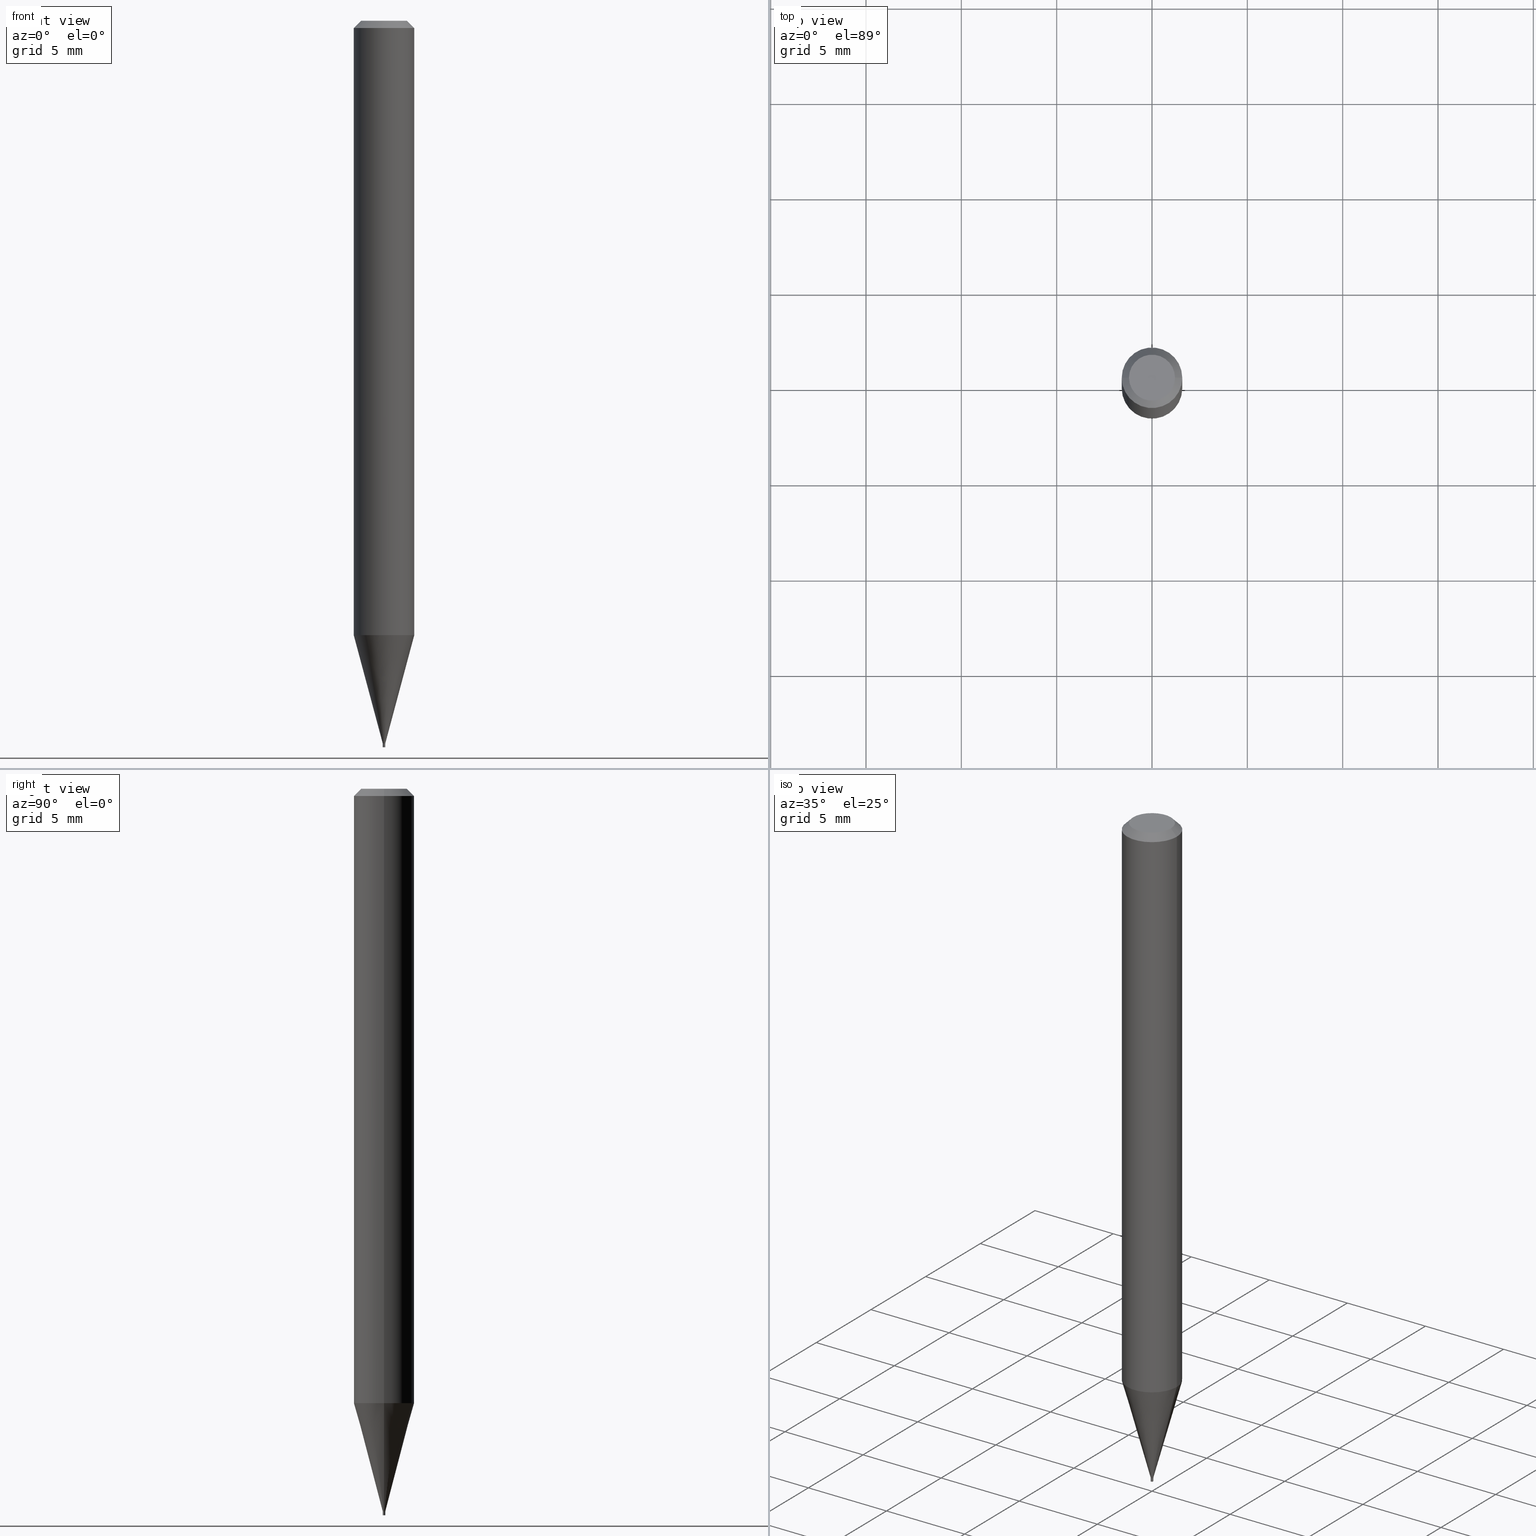
[diagram: canonical four-view strip — front | top / right | iso, engineering-drawing reading convention]
A machine part, canonical four-view strip (front | top / right | iso — engineering-drawing reading convention). The complete STEP part file that produces these views, byte-faithful:
ISO-10303-21;
HEADER;
FILE_DESCRIPTION (( 'STEP AP203' ),
    '1' );
FILE_NAME ('04040.STEP',
    '2024-03-14T16:55:02',
    ( '' ),
    ( '' ),
    'SwSTEP 2.0',
    'SolidWorks 2023',
    '' );
FILE_SCHEMA (( 'CONFIG_CONTROL_DESIGN' ));
ENDSEC;

DATA;
#1 = CARTESIAN_POINT ( 'NONE',  ( 0.002499999999999998751, -5.228493304917609870E-15, -1.492499999999999938 ) ) ;
#2 = FACE_OUTER_BOUND ( 'NONE', #423, .T. ) ;
#3 = COORDINATED_UNIVERSAL_TIME_OFFSET ( 5, 0, .BEHIND. ) ;
#4 = AXIS2_PLACEMENT_3D ( 'NONE', #320, #243, #323 ) ;
#5 = EDGE_LOOP ( 'NONE', ( #277, #367 ) ) ;
#6 = EDGE_CURVE ( 'NONE', #270, #449, #289, .T. ) ;
#7 = ORIENTED_EDGE ( 'NONE', *, *, #414, .T. ) ;
#8 = MECHANICAL_CONTEXT ( 'NONE', #120, 'mechanical' ) ;
#9 = CIRCLE ( 'NONE', #59, 0.001999999999999997440 ) ;
#10 = DIMENSIONAL_EXPONENTS ( 1.000000000000000000, 0.000000000000000000, 0.000000000000000000, 0.000000000000000000, 0.000000000000000000, 0.000000000000000000, 0.000000000000000000 ) ;
#11 = ORIENTED_EDGE ( 'NONE', *, *, #178, .F. ) ;
#12 = CARTESIAN_POINT ( 'NONE',  ( 0.002499999999999647903, -5.226747564248186789E-15, -1.491999999999999993 ) ) ;
#13 = CARTESIAN_POINT ( 'NONE',  ( -0.002500000000000199545, -5.193272329829391131E-15, -1.492499999999999938 ) ) ;
#14 = DIRECTION ( 'NONE',  ( 2.438088387897960049E-29, -3.491481338843145188E-15, -1.000000000000000000 ) ) ;
#15 = CONICAL_SURFACE ( 'NONE', #249, 0.002500000000000199545, 0.2617993877991505736 ) ;
#16 = EDGE_LOOP ( 'NONE', ( #216, #386, #341, #170 ) ) ;
#17 = EDGE_CURVE ( 'NONE', #189, #383, #214, .T. ) ;
#18 = CARTESIAN_POINT ( 'NONE',  ( 0.000000000000000000, 0.000000000000000000, 0.000000000000000000 ) ) ;
#19 = FACE_OUTER_BOUND ( 'NONE', #71, .T. ) ;
#20 = ORIENTED_EDGE ( 'NONE', *, *, #453, .F. ) ;
#21 = CYLINDRICAL_SURFACE ( 'NONE', #268, 0.002499999999999998751 ) ;
#22 = ORIENTED_EDGE ( 'NONE', *, *, #291, .F. ) ;
#23 = DIRECTION ( 'NONE',  ( -0.7071067811865330288, 2.468850131082105205E-15, -0.7071067811865620056 ) ) ;
#24 = DIRECTION ( 'NONE',  ( 1.000000000000000000, -6.982962677686342441E-15, 0.000000000000000000 ) ) ;
#25 = EDGE_CURVE ( 'NONE', #383, #189, #335, .T. ) ;
#26 = CIRCLE ( 'NONE', #352, 0.001999999999999997440 ) ;
#27 = DIRECTION ( 'NONE',  ( 1.000000000000000000, -6.982962677686358218E-15, 0.000000000000000000 ) ) ;
#28 = ORIENTED_EDGE ( 'NONE', *, *, #418, .F. ) ;
#29 = FACE_OUTER_BOUND ( 'NONE', #128, .T. ) ;
#30 = APPROVAL ( #255, 'UNSPECIFIED' ) ;
#31 = VECTOR ( 'NONE', #217, 39.37007874015748143 ) ;
#32 = DIRECTION ( 'NONE',  ( -1.000000000000000000, 6.982962677686266711E-15, 0.000000000000000000 ) ) ;
#33 =( LENGTH_UNIT ( ) NAMED_UNIT ( * ) SI_UNIT ( $, .METRE. ) );
#34 = SECURITY_CLASSIFICATION_LEVEL ( 'unclassified' ) ;
#35 = ORIENTED_EDGE ( 'NONE', *, *, #292, .T. ) ;
#36 = ORIENTED_EDGE ( 'NONE', *, *, #292, .F. ) ;
#37 = EDGE_CURVE ( 'NONE', #95, #449, #45, .T. ) ;
#38 = VECTOR ( 'NONE', #57, 39.37007874015748143 ) ;
#39 = APPROVAL_STATUS ( 'not_yet_approved' ) ;
#40 = LOCAL_TIME ( 12, 55, 2.000000000000000000, #441 ) ;
#41 = EDGE_CURVE ( 'NONE', #466, #365, #239, .T. ) ;
#42 = APPROVAL_STATUS ( 'not_yet_approved' ) ;
#43 = DIRECTION ( 'NONE',  ( 1.000000000000000000, -6.982962677686345597E-15, 0.000000000000000000 ) ) ;
#44 = PERSON_AND_ORGANIZATION ( #63, #459 ) ;
#45 = CIRCLE ( 'NONE', #312, 0.002499999999999647903 ) ;
#46 = DIRECTION ( 'NONE',  ( -2.445468806185136597E-29, 3.491481338843145583E-15, 1.000000000000000000 ) ) ;
#47 = LINE ( 'NONE', #138, #428 ) ;
#48 = EDGE_CURVE ( 'NONE', #183, #305, #241, .T. ) ;
#49 = ORIENTED_EDGE ( 'NONE', *, *, #332, .T. ) ;
#50 = LINE ( 'NONE', #303, #458 ) ;
#51 = DIRECTION ( 'NONE',  ( -2.445468806185136597E-29, 3.491481338843145583E-15, 1.000000000000000000 ) ) ;
#52 = CARTESIAN_POINT ( 'NONE',  ( 3.649862193231316236E-29, -5.211035898223394834E-15, -1.492499999999999938 ) ) ;
#53 = CARTESIAN_POINT ( 'NONE',  ( 3.102265363250856610E-29, -4.429212753208927148E-15, -1.268576951545869136 ) ) ;
#54 = DIRECTION ( 'NONE',  ( -2.438088387897960049E-29, 3.491481338843145188E-15, 1.000000000000000000 ) ) ;
#55 = DIRECTION ( 'NONE',  ( -2.445468806185136877E-29, 3.491481338843145188E-15, 1.000000000000000000 ) ) ;
#56 = DIRECTION ( 'NONE',  ( -2.445468806185136597E-29, 3.491481338843145583E-15, 1.000000000000000000 ) ) ;
#57 = DIRECTION ( 'NONE',  ( -2.445468806185136877E-29, 3.491481338843145188E-15, 1.000000000000000000 ) ) ;
#58 = AXIS2_PLACEMENT_3D ( 'NONE', #53, #46, #265 ) ;
#59 = AXIS2_PLACEMENT_3D ( 'NONE', #93, #234, #447 ) ;
#60 = AXIS2_PLACEMENT_3D ( 'NONE', #169, #56, #24 ) ;
#61 = LOCAL_TIME ( 12, 55, 2.000000000000000000, #153 ) ;
#62 = CARTESIAN_POINT ( 'NONE',  ( -0.002499999999999647903, -5.191526589159973571E-15, -1.491999999999999993 ) ) ;
#63 = PERSON ( 'UNSPECIFIED', 'UNSPECIFIED', 'UNSPECIFIED', ('UNSPECIFIED'), ('UNSPECIFIED'), ('UNSPECIFIED') ) ;
#64 = FACE_OUTER_BOUND ( 'NONE', #430, .T. ) ;
#65 = CC_DESIGN_DATE_AND_TIME_ASSIGNMENT ( #77, #157, ( #156 ) ) ;
#66 = CARTESIAN_POINT ( 'NONE',  ( -0.001999999999999997440, -5.194175816334083195E-15, -1.492500000000000160 ) ) ;
#67 = ORIENTED_EDGE ( 'NONE', *, *, #17, .F. ) ;
#68 = CIRCLE ( 'NONE', #185, 0.002499999999999998751 ) ;
#69 = CC_DESIGN_SECURITY_CLASSIFICATION ( #370, ( #295 ) ) ;
#70 = CARTESIAN_POINT ( 'NONE',  ( -0.002499999999999998751, 1.776356839400249577E-17, -1.229733772563725911E-31 ) ) ;
#71 = EDGE_LOOP ( 'NONE', ( #7, #154, #437, #204 ) ) ;
#72 = PLANE ( 'NONE',  #215 ) ;
#73 = DIRECTION ( 'NONE',  ( 1.000000000000000000, -6.982962677686266711E-15, 4.876176775795935793E-29 ) ) ;
#74 = ORIENTED_EDGE ( 'NONE', *, *, #344, .T. ) ;
#75 = ADVANCED_FACE ( 'NONE', ( #2 ), #150, .T. ) ;
#76 = EDGE_LOOP ( 'NONE', ( #84, #49, #197, #339 ) ) ;
#77 = DATE_AND_TIME ( #444, #343 ) ;
#78 = DIRECTION ( 'NONE',  ( 1.000000000000000000, -6.982962677686267499E-15, 4.852736867747366768E-29 ) ) ;
#79 = EDGE_CURVE ( 'NONE', #305, #300, #351, .T. ) ;
#80 = ADVANCED_FACE ( 'NONE', ( #200 ), #227, .F. ) ;
#81 = AXIS2_PLACEMENT_3D ( 'NONE', #226, #163, #134 ) ;
#82 = APPROVAL_PERSON_ORGANIZATION ( #374, #357, #407 ) ;
#83 = APPLICATION_CONTEXT ( 'configuration controlled 3d designs of mechanical parts and assemblies' ) ;
#84 = ORIENTED_EDGE ( 'NONE', *, *, #79, .T. ) ;
#85 = PERSON_AND_ORGANIZATION ( #63, #459 ) ;
#86 = CARTESIAN_POINT ( 'NONE',  ( 3.649862193231316236E-29, -5.211035898223394834E-15, -1.492499999999999938 ) ) ;
#87 = PERSON_AND_ORGANIZATION_ROLE ( 'design_supplier' ) ;
#88 = ORIENTED_EDGE ( 'NONE', *, *, #291, .T. ) ;
#89 = APPLICATION_PROTOCOL_DEFINITION ( 'international standard', 'config_control_design', 1994, #83 ) ;
#90 = AXIS2_PLACEMENT_3D ( 'NONE', #283, #316, #317 ) ;
#91 = DIRECTION ( 'NONE',  ( 1.000000000000000000, -6.982962677686266711E-15, 0.000000000000000000 ) ) ;
#92 = ORIENTED_EDGE ( 'NONE', *, *, #319, .T. ) ;
#93 = CARTESIAN_POINT ( 'NONE',  ( 3.649862193231316797E-29, -5.211035898223395623E-15, -1.492500000000000160 ) ) ;
#94 = MANIFOLD_SOLID_BREP ( 'Body-Move/Copy2[1]', #232 ) ;
#96 = ADVANCED_FACE ( 'NONE', ( #457 ), #382, .T. ) ;
#95 = VERTEX_POINT ( 'NONE', #12 ) ;
#97 = DIRECTION ( 'NONE',  ( -2.445468806185136597E-29, 3.491481338843145583E-15, 1.000000000000000000 ) ) ;
#98 = EDGE_LOOP ( 'NONE', ( #106, #465, #137, #174 ) ) ;
#99 = PRODUCT ( '04040', '04040', '', ( #8 ) ) ;
#100 = LINE ( 'NONE', #236, #376 ) ;
#101 = CARTESIAN_POINT ( 'NONE',  ( 3.649862193231316797E-29, -5.211035898223395623E-15, -1.492500000000000160 ) ) ;
#102 = DIRECTION ( 'NONE',  ( 0.7071067811865330288, -7.319954787623207136E-15, -0.7071067811865620056 ) ) ;
#103 = MANIFOLD_SOLID_BREP ( 'Body-Move/Copy2[2]', #257 ) ;
#104 = DIRECTION ( 'NONE',  ( 1.000000000000000000, -6.982962677686342441E-15, 0.000000000000000000 ) ) ;
#105 = VECTOR ( 'NONE', #144, 39.37007874015748143 ) ;
#106 = ORIENTED_EDGE ( 'NONE', *, *, #377, .T. ) ;
#107 = LENGTH_MEASURE_WITH_UNIT ( LENGTH_MEASURE( 0.02539999999999999897 ), #33 );
#108 = ADVANCED_FACE ( 'NONE', ( #19 ), #148, .T. ) ;
#109 = DIRECTION ( 'NONE',  ( 0.2588190451025218497, 1.565188264969618221E-15, 0.9659258262890679791 ) ) ;
#110 = DIRECTION ( 'NONE',  ( 1.000000000000000000, -6.982962677686142071E-15, 0.000000000000000000 ) ) ;
#111 = PLANE ( 'NONE',  #225 ) ;
#112 =( NAMED_UNIT ( * ) PLANE_ANGLE_UNIT ( ) SI_UNIT ( $, .RADIAN. ) );
#113 = VECTOR ( 'NONE', #109, 39.37007874015748143 ) ;
#114 = AXIS2_PLACEMENT_3D ( 'NONE', #18, #307, #136 ) ;
#115 = CC_DESIGN_APPROVAL ( #284, ( #295 ) ) ;
#116 = DIRECTION ( 'NONE',  ( 1.000000000000000000, -6.982962677686142071E-15, 0.000000000000000000 ) ) ;
#117 = ORIENTED_EDGE ( 'NONE', *, *, #254, .T. ) ;
#118 = DATE_AND_TIME ( #126, #40 ) ;
#119 = ADVANCED_FACE ( 'NONE', ( #355 ), #361, .T. ) ;
#120 = APPLICATION_CONTEXT ( 'configuration controlled 3d designs of mechanical parts and assemblies' ) ;
#121 = DATE_AND_TIME ( #403, #260 ) ;
#122 = CARTESIAN_POINT ( 'NONE',  ( -0.002499999999999923724, 1.776356839400196267E-17, -1.229733772563688908E-31 ) ) ;
#123 = CONICAL_SURFACE ( 'NONE', #436, 0.06250000000000000000, 0.7853981633974278509 ) ;
#124 = CC_DESIGN_APPROVAL ( #30, ( #370 ) ) ;
#125 = CC_DESIGN_DATE_AND_TIME_ASSIGNMENT ( #192, #224, ( #370 ) ) ;
#126 = CALENDAR_DATE ( 2024, 14, 3 ) ;
#127 = CARTESIAN_POINT ( 'NONE',  ( -1.505681066337554235E-44, 2.149713515899588158E-30, 6.157024217726067260E-16 ) ) ;
#128 = EDGE_LOOP ( 'NONE', ( #36, #328, #133, #321 ) ) ;
#129 = DIRECTION ( 'NONE',  ( 1.000000000000000000, 0.000000000000000000, 0.000000000000000000 ) ) ;
#130 = DIRECTION ( 'NONE',  ( -2.445468806185136597E-29, 3.491481338843145583E-15, 1.000000000000000000 ) ) ;
#131 = VECTOR ( 'NONE', #329, 39.37007874015748143 ) ;
#132 = CARTESIAN_POINT ( 'NONE',  ( 0.000000000000000000, 0.000000000000000000, 0.000000000000000000 ) ) ;
#133 = ORIENTED_EDGE ( 'NONE', *, *, #258, .T. ) ;
#134 = DIRECTION ( 'NONE',  ( 1.000000000000000000, -6.982962677686358218E-15, 0.000000000000000000 ) ) ;
#135 = ADVANCED_FACE ( 'NONE', ( #393 ), #111, .F. ) ;
#136 = DIRECTION ( 'NONE',  ( 1.000000000000000000, -6.982962677686266711E-15, 4.876176775795936914E-29 ) ) ;
#137 = ORIENTED_EDGE ( 'NONE', *, *, #41, .F. ) ;
#138 = CARTESIAN_POINT ( 'NONE',  ( -0.001999999999999997440, -5.196825043508193607E-15, -1.492500000000000160 ) ) ;
#139 = ADVANCED_FACE ( 'NONE', ( #311 ), #15, .T. ) ;
#140 = VECTOR ( 'NONE', #340, 39.37007874015748143 ) ;
#141 = ORIENTED_EDGE ( 'NONE', *, *, #41, .T. ) ;
#142 = FACE_OUTER_BOUND ( 'NONE', #410, .T. ) ;
#143 = CARTESIAN_POINT ( 'NONE',  ( 3.649862193231316236E-29, -5.211035898223394834E-15, -1.492499999999999938 ) ) ;
#144 = DIRECTION ( 'NONE',  ( -2.445468806185136877E-29, 3.491481338843145188E-15, 1.000000000000000000 ) ) ;
#145 = CC_DESIGN_PERSON_AND_ORGANIZATION_ASSIGNMENT ( #337, #261, ( #156 ) ) ;
#146 = CYLINDRICAL_SURFACE ( 'NONE', #399, 0.06250000000000000000 ) ;
#147 = ADVANCED_FACE ( 'NONE', ( #439 ), #72, .F. ) ;
#148 = CONICAL_SURFACE ( 'NONE', #60, 0.001999999999999997440, 0.7853981633969264742 ) ;
#149 = EDGE_CURVE ( 'NONE', #305, #331, #191, .T. ) ;
#150 = CONICAL_SURFACE ( 'NONE', #208, 0.06250000000000000000, 0.7853981633974278509 ) ;
#151 = AXIS2_PLACEMENT_3D ( 'NONE', #245, #462, #27 ) ;
#152 =( GEOMETRIC_REPRESENTATION_CONTEXT ( 3 ) GLOBAL_UNCERTAINTY_ASSIGNED_CONTEXT ( ( #177 ) ) GLOBAL_UNIT_ASSIGNED_CONTEXT ( ( #210, #112, #364 ) ) REPRESENTATION_CONTEXT ( 'NONE', 'WORKASPACE' ) );
#153 = COORDINATED_UNIVERSAL_TIME_OFFSET ( 5, 0, .BEHIND. ) ;
#154 = ORIENTED_EDGE ( 'NONE', *, *, #308, .T. ) ;
#155 = PERSON_AND_ORGANIZATION ( #63, #459 ) ;
#156 = PRODUCT_DEFINITION ( 'UNKNOWN', '', #295, #464 ) ;
#157 = DATE_TIME_ROLE ( 'creation_date' ) ;
#158 = ORIENTED_EDGE ( 'NONE', *, *, #418, .T. ) ;
#159 = CIRCLE ( 'NONE', #165, 0.06250000000000000000 ) ;
#160 = PERSON_AND_ORGANIZATION ( #63, #459 ) ;
#161 = APPROVAL_PERSON_ORGANIZATION ( #85, #284, #223 ) ;
#162 = DIRECTION ( 'NONE',  ( 0.000000000000000000, 0.000000000000000000, 1.000000000000000000 ) ) ;
#163 = DIRECTION ( 'NONE',  ( -2.445468806185136597E-29, 3.491481338843145583E-15, 1.000000000000000000 ) ) ;
#164 = EDGE_LOOP ( 'NONE', ( #141, #158 ) ) ;
#165 = AXIS2_PLACEMENT_3D ( 'NONE', #297, #334, #350 ) ;
#166 = DIRECTION ( 'NONE',  ( -2.445468806185136597E-29, 3.491481338843145583E-15, 1.000000000000000000 ) ) ;
#167 = ORIENTED_EDGE ( 'NONE', *, *, #178, .T. ) ;
#168 = CARTESIAN_POINT ( 'NONE',  ( 3.668203209277704895E-29, -5.237222008264718177E-15, -1.500000000000000222 ) ) ;
#169 = CARTESIAN_POINT ( 'NONE',  ( 3.649862193231316797E-29, -5.211035898223395623E-15, -1.492500000000000160 ) ) ;
#170 = ORIENTED_EDGE ( 'NONE', *, *, #258, .F. ) ;
#171 = CARTESIAN_POINT ( 'NONE',  ( -0.06250000000000001388, -3.985123543358863743E-15, -1.268576951545869136 ) ) ;
#172 = FACE_OUTER_BOUND ( 'NONE', #98, .T. ) ;
#173 = AXIS2_PLACEMENT_3D ( 'NONE', #345, #166, #416 ) ;
#174 = ORIENTED_EDGE ( 'NONE', *, *, #319, .F. ) ;
#175 = DIRECTION ( 'NONE',  ( -2.445468806185136597E-29, 3.491481338843145583E-15, 1.000000000000000000 ) ) ;
#176 = CARTESIAN_POINT ( 'NONE',  ( 0.000000000000000000, 0.000000000000000000, 0.000000000000000000 ) ) ;
#177 = UNCERTAINTY_MEASURE_WITH_UNIT (LENGTH_MEASURE( 1.000000000000000082E-05 ), #210, 'distance_accuracy_value', 'NONE');
#178 = EDGE_CURVE ( 'NONE', #300, #305, #259, .T. ) ;
#179 = ORIENTED_EDGE ( 'NONE', *, *, #326, .F. ) ;
#180 = CIRCLE ( 'NONE', #442, 0.002499999999999998751 ) ;
#181 = ORIENTED_EDGE ( 'NONE', *, *, #453, .T. ) ;
#182 = CYLINDRICAL_SURFACE ( 'NONE', #4, 0.002499999999999923724 ) ;
#183 = VERTEX_POINT ( 'NONE', #266 ) ;
#184 = FACE_OUTER_BOUND ( 'NONE', #373, .T. ) ;
#185 = AXIS2_PLACEMENT_3D ( 'NONE', #168, #347, #417 ) ;
#186 = CARTESIAN_POINT ( 'NONE',  ( 0.06250000000000000000, -4.364351673553916694E-16, 3.047610484872459871E-30 ) ) ;
#187 = APPROVAL_PERSON_ORGANIZATION ( #155, #30, #411 ) ;
#188 = PERSON_AND_ORGANIZATION ( #63, #459 ) ;
#189 = VERTEX_POINT ( 'NONE', #413 ) ;
#190 = EDGE_CURVE ( 'NONE', #331, #285, #159, .T. ) ;
#191 = LINE ( 'NONE', #186, #131 ) ;
#192 = DATE_AND_TIME ( #264, #61 ) ;
#193 = EDGE_LOOP ( 'NONE', ( #218, #167, #419, #22 ) ) ;
#194 = AXIS2_PLACEMENT_3D ( 'NONE', #388, #51, #346 ) ;
#195 = EDGE_LOOP ( 'NONE', ( #318, #402 ) ) ;
#196 = LINE ( 'NONE', #389, #38 ) ;
#197 = ORIENTED_EDGE ( 'NONE', *, *, #190, .F. ) ;
#198 = AXIS2_PLACEMENT_3D ( 'NONE', #52, #310, #456 ) ;
#199 = CYLINDRICAL_SURFACE ( 'NONE', #114, 0.002499999999999998751 ) ;
#200 = FACE_OUTER_BOUND ( 'NONE', #195, .T. ) ;
#201 = ORIENTED_EDGE ( 'NONE', *, *, #48, .F. ) ;
#202 = CC_DESIGN_PERSON_AND_ORGANIZATION_ASSIGNMENT ( #160, #87, ( #295 ) ) ;
#203 = CARTESIAN_POINT ( 'NONE',  ( 0.002499999999999923724, -1.745740669421513430E-17, 1.219044193948946770E-31 ) ) ;
#204 = ORIENTED_EDGE ( 'NONE', *, *, #426, .F. ) ;
#205 = LINE ( 'NONE', #278, #221 ) ;
#206 = DIRECTION ( 'NONE',  ( -2.445468806185136597E-29, 3.491481338843145583E-15, 1.000000000000000000 ) ) ;
#207 = LINE ( 'NONE', #13, #140 ) ;
#208 = AXIS2_PLACEMENT_3D ( 'NONE', #394, #432, #229 ) ;
#209 = EDGE_CURVE ( 'NONE', #211, #235, #68, .T. ) ;
#210 =( CONVERSION_BASED_UNIT ( 'INCH', #107 ) LENGTH_UNIT ( ) NAMED_UNIT ( #10 ) );
#211 = VERTEX_POINT ( 'NONE', #378 ) ;
#212 = ORIENTED_EDGE ( 'NONE', *, *, #230, .F. ) ;
#213 = CARTESIAN_POINT ( 'NONE',  ( -0.04749999999999999362, 3.578768372314221353E-16, 6.157024217726043594E-16 ) ) ;
#214 = CIRCLE ( 'NONE', #275, 0.04749999999999999362 ) ;
#215 = AXIS2_PLACEMENT_3D ( 'NONE', #252, #438, #368 ) ;
#216 = ORIENTED_EDGE ( 'NONE', *, *, #308, .F. ) ;
#217 = DIRECTION ( 'NONE',  ( 0.7071067811861785346, -2.468850131078392037E-15, 0.7071067811869164998 ) ) ;
#218 = ORIENTED_EDGE ( 'NONE', *, *, #332, .F. ) ;
#219 = DIRECTION ( 'NONE',  ( 1.000000000000000000, -6.982962677686358218E-15, 0.000000000000000000 ) ) ;
#220 = CARTESIAN_POINT ( 'NONE',  ( 3.648639458828223995E-29, -5.209290157553973331E-15, -1.491999999999999993 ) ) ;
#221 = VECTOR ( 'NONE', #102, 39.37007874015748143 ) ;
#222 = PERSON_AND_ORGANIZATION_ROLE ( 'classification_officer' ) ;
#223 = APPROVAL_ROLE ( '' ) ;
#224 = DATE_TIME_ROLE ( 'classification_date' ) ;
#225 = AXIS2_PLACEMENT_3D ( 'NONE', #427, #54, #348 ) ;
#226 = CARTESIAN_POINT ( 'NONE',  ( 3.649862193231316236E-29, -5.211035898223394834E-15, -1.492499999999999938 ) ) ;
#227 = PLANE ( 'NONE',  #391 ) ;
#228 = CARTESIAN_POINT ( 'NONE',  ( -0.06250000000000000000, -1.796703276795724695E-15, -0.01499999999999999944 ) ) ;
#229 = DIRECTION ( 'NONE',  ( -1.000000000000000000, 6.982962677686266711E-15, 0.000000000000000000 ) ) ;
#230 = EDGE_CURVE ( 'NONE', #383, #285, #50, .T. ) ;
#231 = ORIENTED_EDGE ( 'NONE', *, *, #25, .F. ) ;
#232 = CLOSED_SHELL ( 'NONE', ( #238, #135, #302, #147 ) ) ;
#233 = CIRCLE ( 'NONE', #242, 0.06250000000000000000 ) ;
#234 = DIRECTION ( 'NONE',  ( -2.445468806185136597E-29, 3.491481338843145583E-15, 1.000000000000000000 ) ) ;
#235 = VERTEX_POINT ( 'NONE', #454 ) ;
#236 = CARTESIAN_POINT ( 'NONE',  ( 0.002499999999999998751, -1.745740669421565815E-17, 1.219044193948983554E-31 ) ) ;
#237 = CARTESIAN_POINT ( 'NONE',  ( 0.06250000000000000000, -4.888073874380388472E-16, -0.01499999999999999944 ) ) ;
#238 = ADVANCED_FACE ( 'NONE', ( #172 ), #21, .T. ) ;
#239 = CIRCLE ( 'NONE', #286, 0.002499999999999998751 ) ;
#240 = CARTESIAN_POINT ( 'NONE',  ( 3.668203209277704895E-29, -5.237222008264718177E-15, -1.500000000000000222 ) ) ;
#241 = LINE ( 'NONE', #435, #113 ) ;
#242 = AXIS2_PLACEMENT_3D ( 'NONE', #415, #460, #91 ) ;
#243 = DIRECTION ( 'NONE',  ( -2.445468806185136597E-29, 3.491481338843145583E-15, 1.000000000000000000 ) ) ;
#244 = ORIENTED_EDGE ( 'NONE', *, *, #274, .F. ) ;
#245 = CARTESIAN_POINT ( 'NONE',  ( 3.649862193231316236E-29, -5.211035898223394834E-15, -1.492499999999999938 ) ) ;
#246 = DIRECTION ( 'NONE',  ( 1.000000000000000000, -6.982962677686342441E-15, 0.000000000000000000 ) ) ;
#247 = ADVANCED_FACE ( 'NONE', ( #353 ), #276, .F. ) ;
#248 = CARTESIAN_POINT ( 'NONE',  ( -0.002499999999999998751, -5.206365384850054380E-15, -1.492499999999999938 ) ) ;
#249 = AXIS2_PLACEMENT_3D ( 'NONE', #143, #290, #219 ) ;
#250 = LINE ( 'NONE', #395, #31 ) ;
#251 = ORIENTED_EDGE ( 'NONE', *, *, #412, .F. ) ;
#252 = CARTESIAN_POINT ( 'NONE',  ( 1.745740669425215529E-17, 0.002499999999994788075, -1.492499999999999938 ) ) ;
#253 = DIRECTION ( 'NONE',  ( -2.445468806185136877E-29, 3.491481338843145188E-15, 1.000000000000000000 ) ) ;
#254 = EDGE_CURVE ( 'NONE', #183, #95, #385, .T. ) ;
#255 = APPROVAL_STATUS ( 'not_yet_approved' ) ;
#256 = DIRECTION ( 'NONE',  ( -2.445468806185136597E-29, 3.491481338843145583E-15, 1.000000000000000000 ) ) ;
#257 = CLOSED_SHELL ( 'NONE', ( #461, #108, #75, #380, #139, #306, #96, #390, #80, #406, #119, #247 ) ) ;
#258 = EDGE_CURVE ( 'NONE', #449, #95, #421, .T. ) ;
#259 = CIRCLE ( 'NONE', #342, 0.06250000000000000000 ) ;
#260 = LOCAL_TIME ( 12, 55, 2.000000000000000000, #262 ) ;
#261 = PERSON_AND_ORGANIZATION_ROLE ( 'creator' ) ;
#262 = COORDINATED_UNIVERSAL_TIME_OFFSET ( 5, 0, .BEHIND. ) ;
#263 = ORIENTED_EDGE ( 'NONE', *, *, #48, .T. ) ;
#264 = CALENDAR_DATE ( 2024, 14, 3 ) ;
#265 = DIRECTION ( 'NONE',  ( 1.000000000000000000, -6.982962677686262766E-15, 0.000000000000000000 ) ) ;
#266 = CARTESIAN_POINT ( 'NONE',  ( 0.002500000000000199545, -5.228493304917612237E-15, -1.492499999999999938 ) ) ;
#267 = ORIENTED_EDGE ( 'NONE', *, *, #6, .F. ) ;
#268 = AXIS2_PLACEMENT_3D ( 'NONE', #272, #97, #299 ) ;
#269 = DIRECTION ( 'NONE',  ( -2.445468806185136597E-29, 3.491481338843145583E-15, 1.000000000000000000 ) ) ;
#270 = VERTEX_POINT ( 'NONE', #314 ) ;
#271 = CC_DESIGN_PERSON_AND_ORGANIZATION_ASSIGNMENT ( #44, #222, ( #370 ) ) ;
#272 = CARTESIAN_POINT ( 'NONE',  ( 0.000000000000000000, 0.000000000000000000, 0.000000000000000000 ) ) ;
#273 = CARTESIAN_POINT ( 'NONE',  ( 0.06250000000000001388, -4.865647920564318817E-15, -1.268576951545869136 ) ) ;
#274 = EDGE_CURVE ( 'NONE', #433, #309, #9, .T. ) ;
#275 = AXIS2_PLACEMENT_3D ( 'NONE', #445, #404, #293 ) ;
#276 = CYLINDRICAL_SURFACE ( 'NONE', #448, 0.002499999999999923724 ) ;
#277 = ORIENTED_EDGE ( 'NONE', *, *, #377, .F. ) ;
#278 = CARTESIAN_POINT ( 'NONE',  ( 0.06250000000000000000, -4.811533449433679005E-16, -0.01499999999999999944 ) ) ;
#279 = CARTESIAN_POINT ( 'NONE',  ( 3.649862193231316236E-29, -5.211035898223394834E-15, -1.492499999999999938 ) ) ;
#280 = DIRECTION ( 'NONE',  ( 1.000000000000000000, -6.982962677686142071E-15, 0.000000000000000000 ) ) ;
#281 = CARTESIAN_POINT ( 'NONE',  ( 3.649862193231316797E-29, -5.211035898223395623E-15, -1.492500000000000160 ) ) ;
#282 = CIRCLE ( 'NONE', #81, 0.002500000000000199545 ) ;
#283 = CARTESIAN_POINT ( 'NONE',  ( 3.649862193231316236E-29, -5.211035898223394834E-15, -1.492499999999999938 ) ) ;
#284 = APPROVAL ( #42, 'UNSPECIFIED' ) ;
#285 = VERTEX_POINT ( 'NONE', #228 ) ;
#286 = AXIS2_PLACEMENT_3D ( 'NONE', #86, #360, #280 ) ;
#287 = ORIENTED_EDGE ( 'NONE', *, *, #414, .F. ) ;
#288 = APPROVAL_DATE_TIME ( #366, #30 ) ;
#289 = LINE ( 'NONE', #122, #420 ) ;
#290 = DIRECTION ( 'NONE',  ( -2.445468806185136597E-29, 3.491481338843145583E-15, 1.000000000000000000 ) ) ;
#291 = EDGE_CURVE ( 'NONE', #285, #331, #233, .T. ) ;
#292 = EDGE_CURVE ( 'NONE', #270, #183, #282, .T. ) ;
#293 = DIRECTION ( 'NONE',  ( 1.000000000000000000, -6.982962677686267499E-15, 4.852736867747366768E-29 ) ) ;
#294 = CIRCLE ( 'NONE', #151, 0.002500000000000199545 ) ;
#295 = PRODUCT_DEFINITION_FORMATION_WITH_SPECIFIED_SOURCE ( 'ANY', '', #99, .NOT_KNOWN. ) ;
#296 = CALENDAR_DATE ( 2024, 14, 3 ) ;
#297 = CARTESIAN_POINT ( 'NONE',  ( 3.668203209277705088E-31, -5.237222008264718399E-17, -0.01499999999999999944 ) ) ;
#298 = APPROVAL_DATE_TIME ( #118, #357 ) ;
#299 = DIRECTION ( 'NONE',  ( 1.000000000000000000, -6.982962677686266711E-15, 4.876176775795936914E-29 ) ) ;
#300 = VERTEX_POINT ( 'NONE', #171 ) ;
#301 = AXIS2_PLACEMENT_3D ( 'NONE', #240, #358, #116 ) ;
#302 = ADVANCED_FACE ( 'NONE', ( #387 ), #199, .T. ) ;
#303 = CARTESIAN_POINT ( 'NONE',  ( -0.06250000000000000000, 3.840629472727444916E-16, -0.01499999999999999944 ) ) ;
#304 = DIRECTION ( 'NONE',  ( 1.000000000000000000, -6.982962677686262766E-15, 0.000000000000000000 ) ) ;
#305 = VERTEX_POINT ( 'NONE', #273 ) ;
#306 = ADVANCED_FACE ( 'NONE', ( #142 ), #336, .T. ) ;
#307 = DIRECTION ( 'NONE',  ( -2.445468806185136597E-29, 3.491481338843145583E-15, 1.000000000000000000 ) ) ;
#308 = EDGE_CURVE ( 'NONE', #433, #449, #47, .T. ) ;
#309 = VERTEX_POINT ( 'NONE', #422 ) ;
#310 = DIRECTION ( 'NONE',  ( -2.445468806185136597E-29, 3.491481338843145583E-15, 1.000000000000000000 ) ) ;
#311 = FACE_OUTER_BOUND ( 'NONE', #356, .T. ) ;
#312 = AXIS2_PLACEMENT_3D ( 'NONE', #220, #408, #43 ) ;
#313 = VECTOR ( 'NONE', #381, 39.37007874015748143 ) ;
#314 = CARTESIAN_POINT ( 'NONE',  ( -0.002500000000000199545, -4.589197936594127831E-15, -1.492499999999999938 ) ) ;
#315 = PRODUCT_DEFINITION_SHAPE ( 'NONE', 'NONE',  #156 ) ;
#316 = DIRECTION ( 'NONE',  ( -2.438088387897960049E-29, 3.491481338843145188E-15, 1.000000000000000000 ) ) ;
#317 = DIRECTION ( 'NONE',  ( 1.000000000000000000, -6.982962677686265922E-15, 4.876176775795935793E-29 ) ) ;
#318 = ORIENTED_EDGE ( 'NONE', *, *, #25, .T. ) ;
#319 = EDGE_CURVE ( 'NONE', #235, #466, #100, .T. ) ;
#320 = CARTESIAN_POINT ( 'NONE',  ( 0.000000000000000000, 0.000000000000000000, 0.000000000000000000 ) ) ;
#321 = ORIENTED_EDGE ( 'NONE', *, *, #254, .F. ) ;
#322 = ORIENTED_EDGE ( 'NONE', *, *, #79, .F. ) ;
#323 = DIRECTION ( 'NONE',  ( 1.000000000000000000, -6.982962677686266711E-15, 4.876176775795935793E-29 ) ) ;
#324 = DIRECTION ( 'NONE',  ( 2.445468806185136597E-29, -3.491481338843145583E-15, -1.000000000000000000 ) ) ;
#325 = EDGE_LOOP ( 'NONE', ( #267, #20, #117, #375 ) ) ;
#326 = EDGE_CURVE ( 'NONE', #189, #331, #205, .T. ) ;
#327 = PERSON_AND_ORGANIZATION_ROLE ( 'design_owner' ) ;
#328 = ORIENTED_EDGE ( 'NONE', *, *, #6, .T. ) ;
#329 = DIRECTION ( 'NONE',  ( -2.445468806185136877E-29, 3.491481338843145188E-15, 1.000000000000000000 ) ) ;
#330 = CARTESIAN_POINT ( 'NONE',  ( 3.102265363250856610E-29, -4.429212753208927148E-15, -1.268576951545869136 ) ) ;
#331 = VERTEX_POINT ( 'NONE', #237 ) ;
#332 = EDGE_CURVE ( 'NONE', #300, #285, #196, .T. ) ;
#333 = COORDINATED_UNIVERSAL_TIME_OFFSET ( 5, 0, .BEHIND. ) ;
#334 = DIRECTION ( 'NONE',  ( -2.445468806185136597E-29, 3.491481338843145583E-15, 1.000000000000000000 ) ) ;
#335 = CIRCLE ( 'NONE', #397, 0.04749999999999999362 ) ;
#336 = CONICAL_SURFACE ( 'NONE', #198, 0.002500000000000199545, 0.2617993877991505736 ) ;
#337 = PERSON_AND_ORGANIZATION ( #63, #459 ) ;
#338 = CARTESIAN_POINT ( 'NONE',  ( 3.316907271900976096E-16, 0.04749999999999999362, 1.420058472912539912E-16 ) ) ;
#339 = ORIENTED_EDGE ( 'NONE', *, *, #149, .F. ) ;
#340 = DIRECTION ( 'NONE',  ( -0.2588190451025218497, 5.211531920934553408E-15, 0.9659258262890679791 ) ) ;
#341 = ORIENTED_EDGE ( 'NONE', *, *, #426, .T. ) ;
#342 = AXIS2_PLACEMENT_3D ( 'NONE', #330, #130, #304 ) ;
#343 = LOCAL_TIME ( 12, 55, 2.000000000000000000, #3 ) ;
#344 = EDGE_CURVE ( 'NONE', #270, #300, #207, .T. ) ;
#345 = CARTESIAN_POINT ( 'NONE',  ( 3.648639458828223995E-29, -5.209290157553973331E-15, -1.491999999999999993 ) ) ;
#346 = DIRECTION ( 'NONE',  ( 1.000000000000000000, -6.982962677686266711E-15, 4.876176775795935793E-29 ) ) ;
#347 = DIRECTION ( 'NONE',  ( -2.445468806185136597E-29, 3.491481338843145583E-15, 1.000000000000000000 ) ) ;
#348 = DIRECTION ( 'NONE',  ( 1.000000000000000000, -6.982962677686265922E-15, 4.876176775795935793E-29 ) ) ;
#349 = ORIENTED_EDGE ( 'NONE', *, *, #190, .T. ) ;
#350 = DIRECTION ( 'NONE',  ( 1.000000000000000000, -6.982962677686266711E-15, 0.000000000000000000 ) ) ;
#351 = CIRCLE ( 'NONE', #58, 0.06250000000000000000 ) ;
#352 = AXIS2_PLACEMENT_3D ( 'NONE', #281, #429, #104 ) ;
#353 = FACE_OUTER_BOUND ( 'NONE', #325, .T. ) ;
#354 = LOCAL_TIME ( 12, 55, 2.000000000000000000, #333 ) ;
#355 = FACE_OUTER_BOUND ( 'NONE', #16, .T. ) ;
#356 = EDGE_LOOP ( 'NONE', ( #181, #74, #322, #201 ) ) ;
#357 = APPROVAL ( #39, 'UNSPECIFIED' ) ;
#358 = DIRECTION ( 'NONE',  ( -2.445468806185136597E-29, 3.491481338843145583E-15, 1.000000000000000000 ) ) ;
#359 = CARTESIAN_POINT ( 'NONE',  ( 3.668203209277705088E-31, -5.237222008264718399E-17, -0.01499999999999999944 ) ) ;
#360 = DIRECTION ( 'NONE',  ( -2.445468806185136597E-29, 3.491481338843145583E-15, 1.000000000000000000 ) ) ;
#361 = CONICAL_SURFACE ( 'NONE', #369, 0.001999999999999997440, 0.7853981633969264742 ) ;
#362 = CC_DESIGN_APPROVAL ( #357, ( #156 ) ) ;
#363 = ORIENTED_EDGE ( 'NONE', *, *, #230, .T. ) ;
#364 =( NAMED_UNIT ( * ) SI_UNIT ( $, .STERADIAN. ) SOLID_ANGLE_UNIT ( ) );
#365 = VERTEX_POINT ( 'NONE', #248 ) ;
#366 = DATE_AND_TIME ( #296, #354 ) ;
#367 = ORIENTED_EDGE ( 'NONE', *, *, #209, .F. ) ;
#368 = DIRECTION ( 'NONE',  ( -1.000000000000000000, 6.982962677686265922E-15, -4.876176775795935793E-29 ) ) ;
#369 = AXIS2_PLACEMENT_3D ( 'NONE', #101, #206, #246 ) ;
#370 = SECURITY_CLASSIFICATION ( '', '', #34 ) ;
#371 = CC_DESIGN_PERSON_AND_ORGANIZATION_ASSIGNMENT ( #446, #405, ( #295 ) ) ;
#372 = APPROVAL_DATE_TIME ( #121, #284 ) ;
#373 = EDGE_LOOP ( 'NONE', ( #179, #231, #363, #88 ) ) ;
#374 = PERSON_AND_ORGANIZATION ( #63, #459 ) ;
#375 = ORIENTED_EDGE ( 'NONE', *, *, #37, .T. ) ;
#376 = VECTOR ( 'NONE', #55, 39.37007874015748143 ) ;
#377 = EDGE_CURVE ( 'NONE', #235, #211, #384, .T. ) ;
#378 = CARTESIAN_POINT ( 'NONE',  ( -0.002499999999999998751, -5.206365384850054380E-15, -1.500000000000000222 ) ) ;
#379 = DIRECTION ( 'NONE',  ( -1.000000000000000000, 6.982962677686265922E-15, -4.876176775795935793E-29 ) ) ;
#380 = ADVANCED_FACE ( 'NONE', ( #398 ), #146, .T. ) ;
#381 = DIRECTION ( 'NONE',  ( -2.445468806185136877E-29, 3.491481338843145188E-15, 1.000000000000000000 ) ) ;
#382 = CYLINDRICAL_SURFACE ( 'NONE', #194, 0.06250000000000000000 ) ;
#383 = VERTEX_POINT ( 'NONE', #213 ) ;
#384 = CIRCLE ( 'NONE', #301, 0.002499999999999998751 ) ;
#385 = LINE ( 'NONE', #203, #313 ) ;
#386 = ORIENTED_EDGE ( 'NONE', *, *, #274, .T. ) ;
#387 = FACE_OUTER_BOUND ( 'NONE', #396, .T. ) ;
#388 = CARTESIAN_POINT ( 'NONE',  ( 0.000000000000000000, 0.000000000000000000, 0.000000000000000000 ) ) ;
#389 = CARTESIAN_POINT ( 'NONE',  ( -0.06250000000000000000, 4.440892098500626162E-16, -3.074334431409316114E-30 ) ) ;
#390 = ADVANCED_FACE ( 'NONE', ( #184 ), #123, .T. ) ;
#391 = AXIS2_PLACEMENT_3D ( 'NONE', #338, #14, #379 ) ;
#392 = DIRECTION ( 'NONE',  ( -2.445468806185136597E-29, 3.491481338843145583E-15, 1.000000000000000000 ) ) ;
#393 = FACE_OUTER_BOUND ( 'NONE', #5, .T. ) ;
#394 = CARTESIAN_POINT ( 'NONE',  ( 3.668203209277705088E-31, -5.237222008264718399E-17, -0.01499999999999999944 ) ) ;
#395 = CARTESIAN_POINT ( 'NONE',  ( 0.001999999999999997440, -5.225001823578768441E-15, -1.492500000000000160 ) ) ;
#396 = EDGE_LOOP ( 'NONE', ( #251, #443, #92, #28 ) ) ;
#397 = AXIS2_PLACEMENT_3D ( 'NONE', #127, #256, #78 ) ;
#398 = FACE_OUTER_BOUND ( 'NONE', #76, .T. ) ;
#399 = AXIS2_PLACEMENT_3D ( 'NONE', #431, #175, #73 ) ;
#400 = ORIENTED_EDGE ( 'NONE', *, *, #344, .F. ) ;
#401 = ORIENTED_EDGE ( 'NONE', *, *, #326, .T. ) ;
#402 = ORIENTED_EDGE ( 'NONE', *, *, #17, .T. ) ;
#403 = CALENDAR_DATE ( 2024, 14, 3 ) ;
#404 = DIRECTION ( 'NONE',  ( -2.445468806185136597E-29, 3.491481338843145583E-15, 1.000000000000000000 ) ) ;
#405 = PERSON_AND_ORGANIZATION_ROLE ( 'creator' ) ;
#406 = ADVANCED_FACE ( 'NONE', ( #64 ), #434, .F. ) ;
#407 = APPROVAL_ROLE ( '' ) ;
#408 = DIRECTION ( 'NONE',  ( -2.445468806185136597E-29, 3.491481338843145583E-15, 1.000000000000000000 ) ) ;
#409 = SHAPE_DEFINITION_REPRESENTATION ( #315, #451 ) ;
#410 = EDGE_LOOP ( 'NONE', ( #400, #35, #263, #11 ) ) ;
#411 = APPROVAL_ROLE ( '' ) ;
#412 = EDGE_CURVE ( 'NONE', #211, #365, #463, .T. ) ;
#413 = CARTESIAN_POINT ( 'NONE',  ( 0.04749999999999999362, -4.035134999187568269E-16, 6.157024217726092898E-16 ) ) ;
#414 = EDGE_CURVE ( 'NONE', #309, #433, #26, .T. ) ;
#415 = CARTESIAN_POINT ( 'NONE',  ( 3.668203209277705088E-31, -5.237222008264718399E-17, -0.01499999999999999944 ) ) ;
#416 = DIRECTION ( 'NONE',  ( 1.000000000000000000, -6.982962677686345597E-15, 0.000000000000000000 ) ) ;
#417 = DIRECTION ( 'NONE',  ( 1.000000000000000000, -6.982962677686142071E-15, 0.000000000000000000 ) ) ;
#418 = EDGE_CURVE ( 'NONE', #365, #466, #180, .T. ) ;
#419 = ORIENTED_EDGE ( 'NONE', *, *, #149, .T. ) ;
#420 = VECTOR ( 'NONE', #253, 39.37007874015748143 ) ;
#421 = CIRCLE ( 'NONE', #173, 0.002499999999999647903 ) ;
#422 = CARTESIAN_POINT ( 'NONE',  ( 0.001999999999999997440, -5.225001823578768441E-15, -1.492500000000000160 ) ) ;
#423 = EDGE_LOOP ( 'NONE', ( #67, #401, #349, #212 ) ) ;
#424 = DIRECTION ( 'NONE',  ( -0.7071067811861785346, 7.493145998869020985E-15, 0.7071067811869164998 ) ) ;
#425 = APPLICATION_PROTOCOL_DEFINITION ( 'international standard', 'config_control_design', 1994, #120 ) ;
#426 = EDGE_CURVE ( 'NONE', #309, #95, #250, .T. ) ;
#427 = CARTESIAN_POINT ( 'NONE',  ( 3.576687321579069994E-29, -5.368277968210015545E-15, -1.500000000000000222 ) ) ;
#428 = VECTOR ( 'NONE', #424, 39.37007874015748143 ) ;
#429 = DIRECTION ( 'NONE',  ( -2.445468806185136597E-29, 3.491481338843145583E-15, 1.000000000000000000 ) ) ;
#430 = EDGE_LOOP ( 'NONE', ( #287, #244 ) ) ;
#431 = CARTESIAN_POINT ( 'NONE',  ( 0.000000000000000000, 0.000000000000000000, 0.000000000000000000 ) ) ;
#432 = DIRECTION ( 'NONE',  ( 2.445468806185136597E-29, -3.491481338843145583E-15, -1.000000000000000000 ) ) ;
#433 = VERTEX_POINT ( 'NONE', #66 ) ;
#434 = PLANE ( 'NONE',  #90 ) ;
#435 = CARTESIAN_POINT ( 'NONE',  ( 0.002500000000000199545, -5.228493304917612237E-15, -1.492499999999999938 ) ) ;
#436 = AXIS2_PLACEMENT_3D ( 'NONE', #359, #324, #32 ) ;
#437 = ORIENTED_EDGE ( 'NONE', *, *, #37, .F. ) ;
#438 = DIRECTION ( 'NONE',  ( 2.438088387897960049E-29, -3.491481338843145188E-15, -1.000000000000000000 ) ) ;
#439 = FACE_OUTER_BOUND ( 'NONE', #164, .T. ) ;
#440 = CC_DESIGN_PERSON_AND_ORGANIZATION_ASSIGNMENT ( #188, #327, ( #99 ) ) ;
#441 = COORDINATED_UNIVERSAL_TIME_OFFSET ( 5, 0, .BEHIND. ) ;
#442 = AXIS2_PLACEMENT_3D ( 'NONE', #279, #392, #110 ) ;
#443 = ORIENTED_EDGE ( 'NONE', *, *, #209, .T. ) ;
#444 = CALENDAR_DATE ( 2024, 14, 3 ) ;
#445 = CARTESIAN_POINT ( 'NONE',  ( -1.505681066337554235E-44, 2.149713515899588158E-30, 6.157024217726067260E-16 ) ) ;
#446 = PERSON_AND_ORGANIZATION ( #63, #459 ) ;
#447 = DIRECTION ( 'NONE',  ( 1.000000000000000000, -6.982962677686342441E-15, 0.000000000000000000 ) ) ;
#448 = AXIS2_PLACEMENT_3D ( 'NONE', #132, #269, #452 ) ;
#449 = VERTEX_POINT ( 'NONE', #62 ) ;
#450 = AXIS2_PLACEMENT_3D ( 'NONE', #176, #162, #129 ) ;
#451 = ADVANCED_BREP_SHAPE_REPRESENTATION ( '04040', ( #94, #103, #450 ), #152 ) ;
#452 = DIRECTION ( 'NONE',  ( 1.000000000000000000, -6.982962677686266711E-15, 4.876176775795935793E-29 ) ) ;
#453 = EDGE_CURVE ( 'NONE', #183, #270, #294, .T. ) ;
#454 = CARTESIAN_POINT ( 'NONE',  ( 0.002499999999999998751, -5.254679414958934001E-15, -1.500000000000000222 ) ) ;
#455 = PRODUCT_RELATED_PRODUCT_CATEGORY ( 'detail', '', ( #99 ) ) ;
#456 = DIRECTION ( 'NONE',  ( 1.000000000000000000, -6.982962677686358218E-15, 0.000000000000000000 ) ) ;
#457 = FACE_OUTER_BOUND ( 'NONE', #193, .T. ) ;
#458 = VECTOR ( 'NONE', #23, 39.37007874015748143 ) ;
#459 = ORGANIZATION ( 'UNSPECIFIED', 'UNSPECIFIED', '' ) ;
#460 = DIRECTION ( 'NONE',  ( -2.445468806185136597E-29, 3.491481338843145583E-15, 1.000000000000000000 ) ) ;
#461 = ADVANCED_FACE ( 'NONE', ( #29 ), #182, .F. ) ;
#462 = DIRECTION ( 'NONE',  ( -2.445468806185136597E-29, 3.491481338843145583E-15, 1.000000000000000000 ) ) ;
#463 = LINE ( 'NONE', #70, #105 ) ;
#464 = DESIGN_CONTEXT ( 'detailed design', #83, 'design' ) ;
#465 = ORIENTED_EDGE ( 'NONE', *, *, #412, .T. ) ;
#466 = VERTEX_POINT ( 'NONE', #1 ) ;
ENDSEC;
END-ISO-10303-21;
